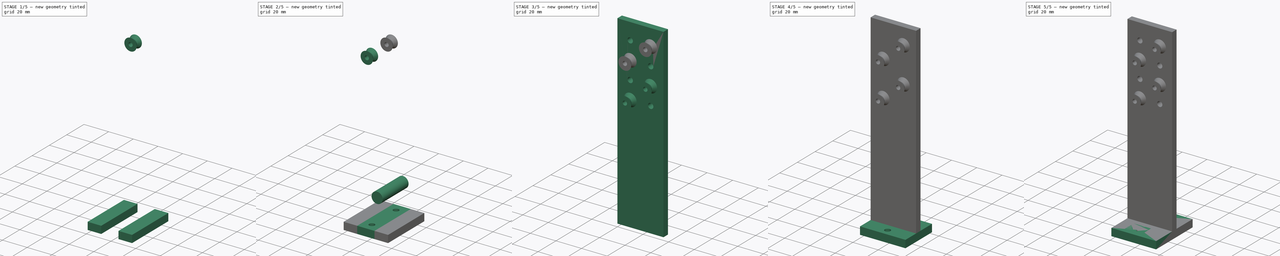
[diagram: build sequence overview — one tinted view per stage of 5, left to right]
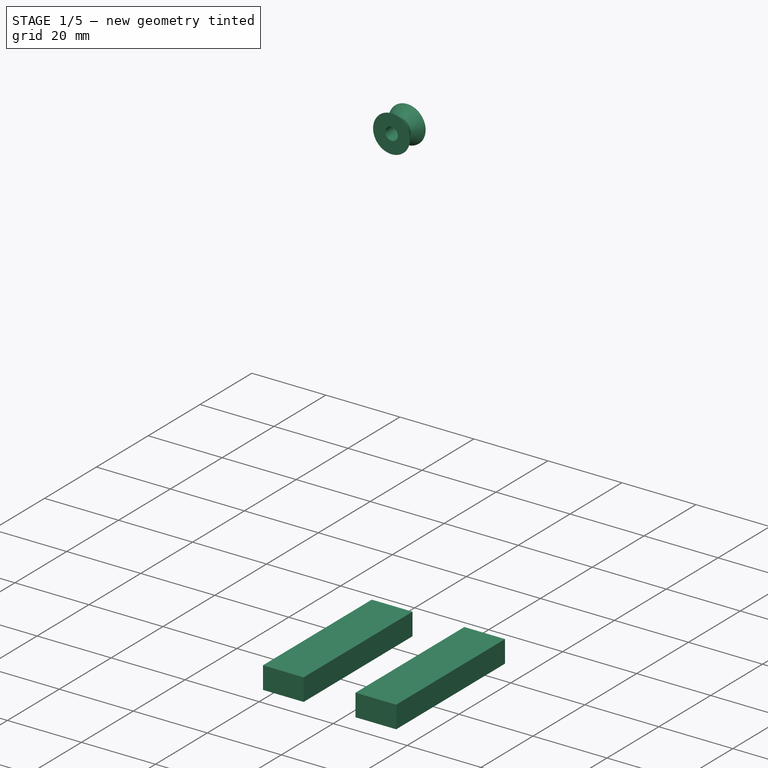
[diagram: stage 1 of 5 — iso view after this stage's code; geometry added in this stage tinted green]
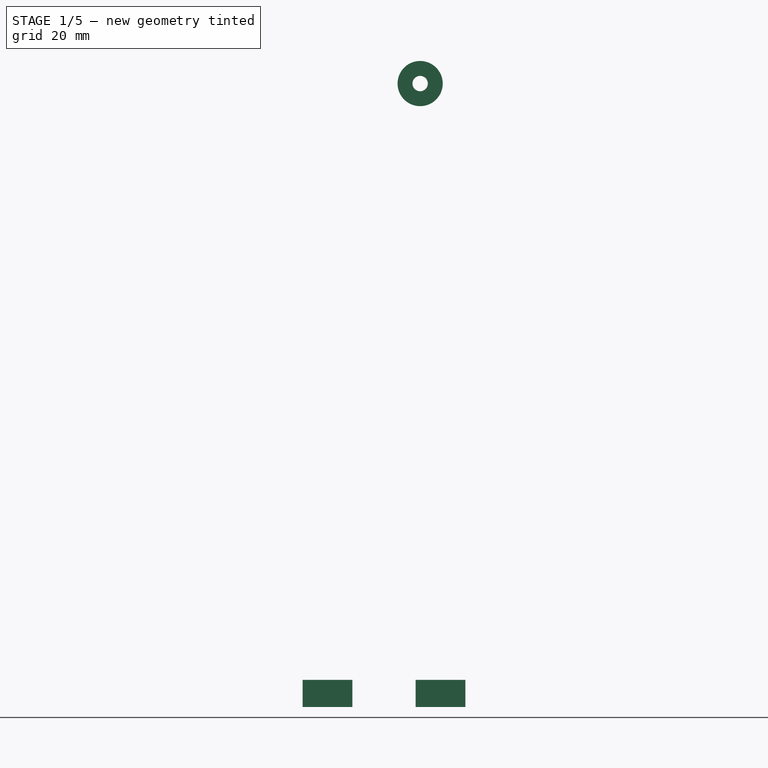
[diagram: stage 1 of 5 — front view after this stage's code; geometry added in this stage tinted green]
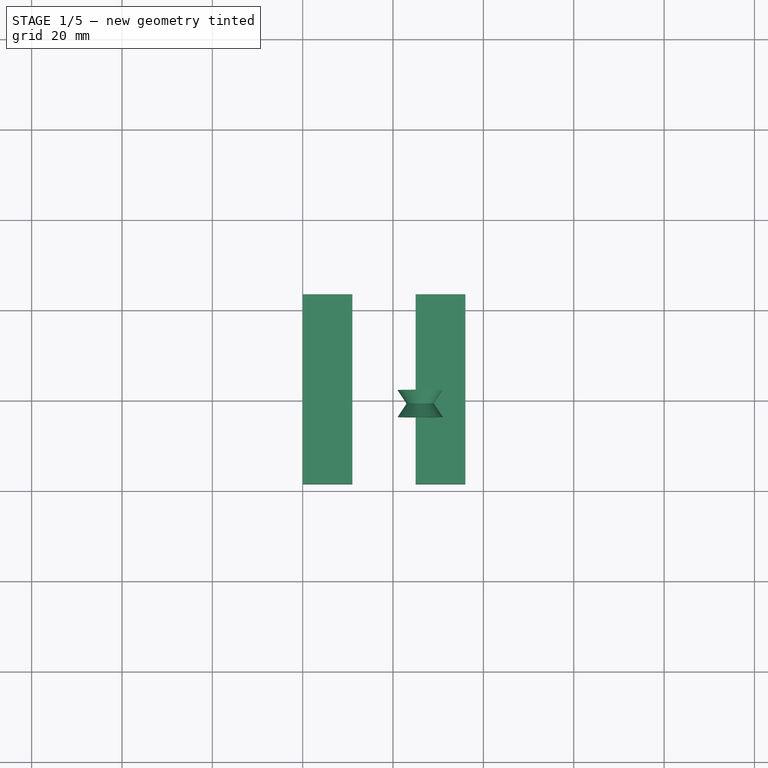
[diagram: stage 1 of 5 — top view after this stage's code; geometry added in this stage tinted green]
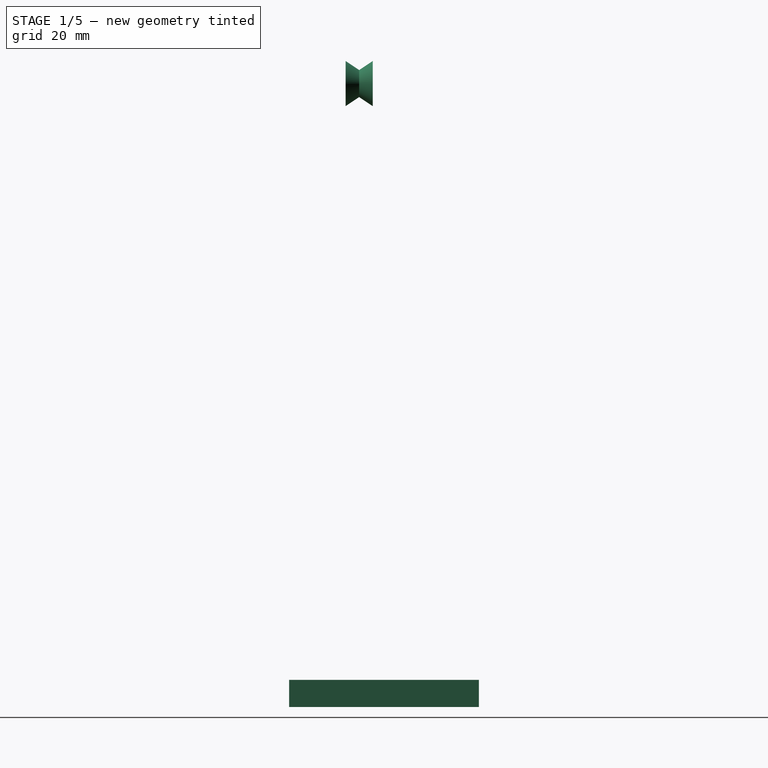
[diagram: stage 1 of 5 — right view after this stage's code; geometry added in this stage tinted green]
FCSTD DOCUMENT  (FreeCAD 0.18R4 (GitTag))
Label: Conjunto módulo tensionador
License: All rights reserved
LicenseURL: http://en.wikipedia.org/wiki/All_rights_reserved
objects: Part::Box×13, Part::Cut×9, Part::Cylinder×6, Part::Feature×6, Part::MultiFuse×4, Sketcher::SketchObject×2, PartDesign::Pocket×2, Part::Fuse×2
note: 46 computed .brp shape members not serialized (recipe doc carries the construction recipe); baked Part::Feature solids carry a one-line shape summary decoded from their .brp

FEATURE [Part::Box] Box010  label="Cubo010"
  AttacherType = Attacher::AttachEngine3D
  Height = 6
  Length = 11
  Placement = pos=(0,-18.5,-6) rot=(0,0,1;0rad)
  Width = 42
FEATURE [Part::Box] Box011  label="Cubo011"
  AttacherType = Attacher::AttachEngine3D
  Height = 6
  Length = 11
  Placement = pos=(25,-18.5,-6) rot=(0,0,1;0rad)
  Width = 42
FEATURE [Part::Box] Box012  label="Cubo012"
  AttacherType = Attacher::AttachEngine3D
  Height = 6
  Length = 11
  Placement = pos=(0,-18.5,-6) rot=(0,0,1;0rad)
  Width = 42
FEATURE [Part::Cylinder] Cylinder007  label="Cilindro007"
  Angle = 360
  AttacherType = Attacher::AttachEngine3D
  Height = 30
  Placement = pos=(21.158,20,20) rot=(1,0,0;1.5708rad)
  Radius = 4.5
FEATURE [Part::Box] Box013  label="Cubo013"
  AttacherType = Attacher::AttachEngine3D
  Height = 6
  Length = 11
  Placement = pos=(25,-18.5,-6) rot=(0,0,1;0rad)
  Width = 42
FEATURE [Part::Feature] Cut003001013
  Placement = pos=(3,0,0) rot=(0,0,1;0rad)
  shape: bbox 14 x 42 x 6 mm, 8 faces (baked)
FEATURE [Part::MultiFuse] Fusion001002021
  Shapes = -> [Box012,Cut003001013,Box013]
FEATURE [Part::Cut] Cut003001012  label="tensioner003"
  Base = -> Fusion001002021
  Placement = pos=(26,-3,132) rot=(1,0,0;1.5708rad)
  Tool = -> Cylinder007
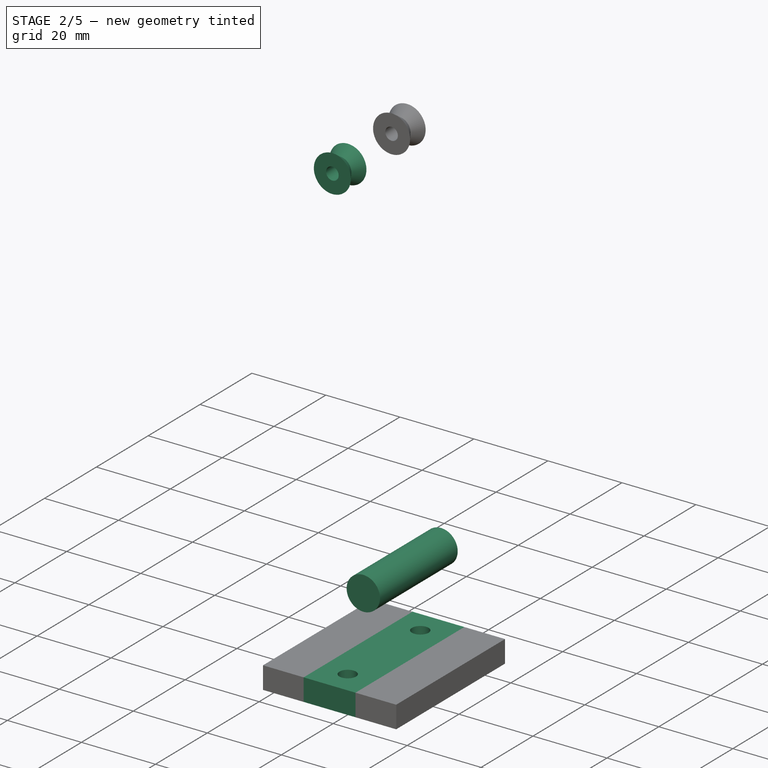
[diagram: stage 2 of 5 — iso view after this stage's code; geometry added in this stage tinted green]
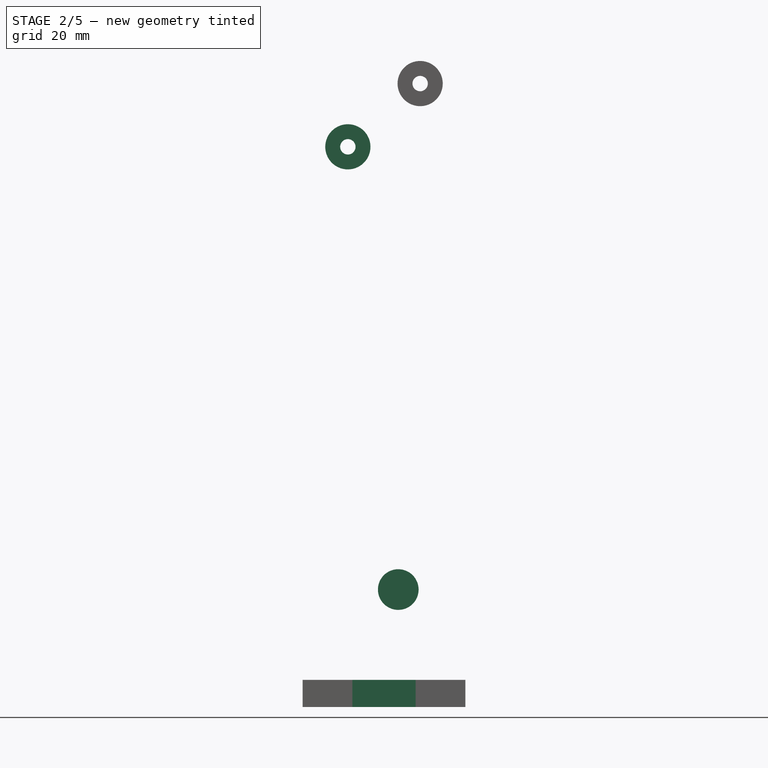
[diagram: stage 2 of 5 — front view after this stage's code; geometry added in this stage tinted green]
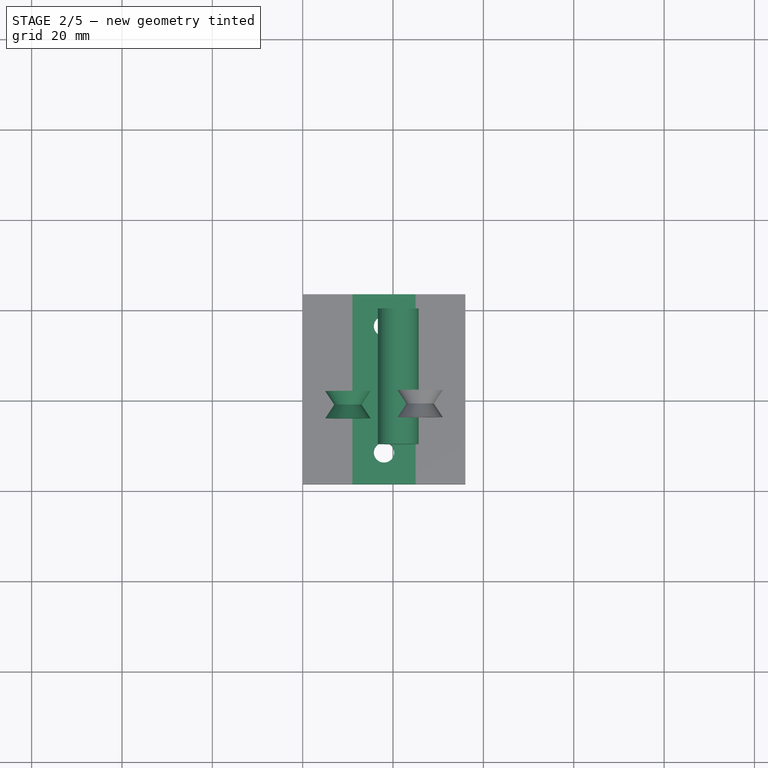
[diagram: stage 2 of 5 — top view after this stage's code; geometry added in this stage tinted green]
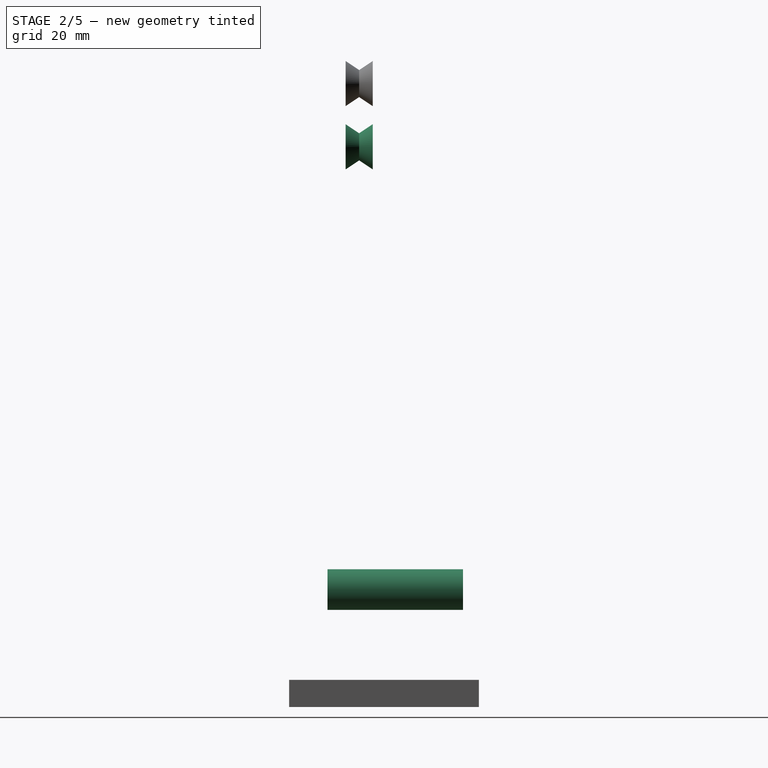
[diagram: stage 2 of 5 — right view after this stage's code; geometry added in this stage tinted green]
FEATURE [Part::Cylinder] Cylinder005  label="Cilindro005"
  Angle = 360
  AttacherType = Attacher::AttachEngine3D
  Height = 30
  Placement = pos=(21.158,20,20) rot=(1,0,0;1.5708rad)
  Radius = 4.5
FEATURE [Part::Box] Box008  label="Cubo008"
  AttacherType = Attacher::AttachEngine3D
  Height = 6
  Length = 11
  Placement = pos=(0,-18.5,-6) rot=(0,0,1;0rad)
  Width = 42
FEATURE [Part::Box] Box009  label="Cubo009"
  AttacherType = Attacher::AttachEngine3D
  Height = 6
  Length = 11
  Placement = pos=(25,-18.5,-6) rot=(0,0,1;0rad)
  Width = 42
FEATURE [Part::Feature] Cut003001008
  Placement = pos=(3,0,0) rot=(0,0,1;0rad)
  shape: bbox 14 x 42 x 6 mm, 8 faces (baked)
FEATURE [Part::MultiFuse] Fusion001002019
  Shapes = -> [Box008,Cut003001008,Box009]
FEATURE [Part::Cylinder] Cylinder006  label="Cilindro006"
  Angle = 360
  AttacherType = Attacher::AttachEngine3D
  Height = 30
  Placement = pos=(21.158,20,20) rot=(1,0,0;1.5708rad)
  Radius = 4.5
FEATURE [Part::Feature] Cut003001011
  Placement = pos=(3,0,0) rot=(0,0,1;0rad)
  shape: bbox 14 x 42 x 6 mm, 8 faces (baked)
FEATURE [Part::MultiFuse] Fusion001002020
  Shapes = -> [Box010,Cut003001011,Box011]
FEATURE [Part::Cut] Cut003001010  label="tensioner002"
  Base = -> Fusion001002020
  Placement = pos=(10,-3,118) rot=(1,0,0;1.5708rad)
  Tool = -> Cylinder006
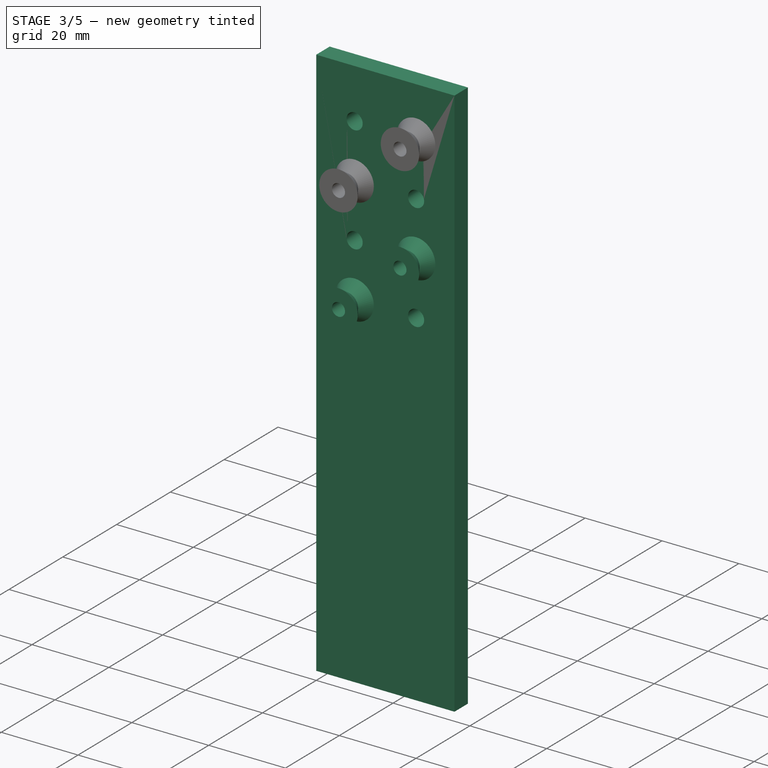
[diagram: stage 3 of 5 — iso view after this stage's code; geometry added in this stage tinted green]
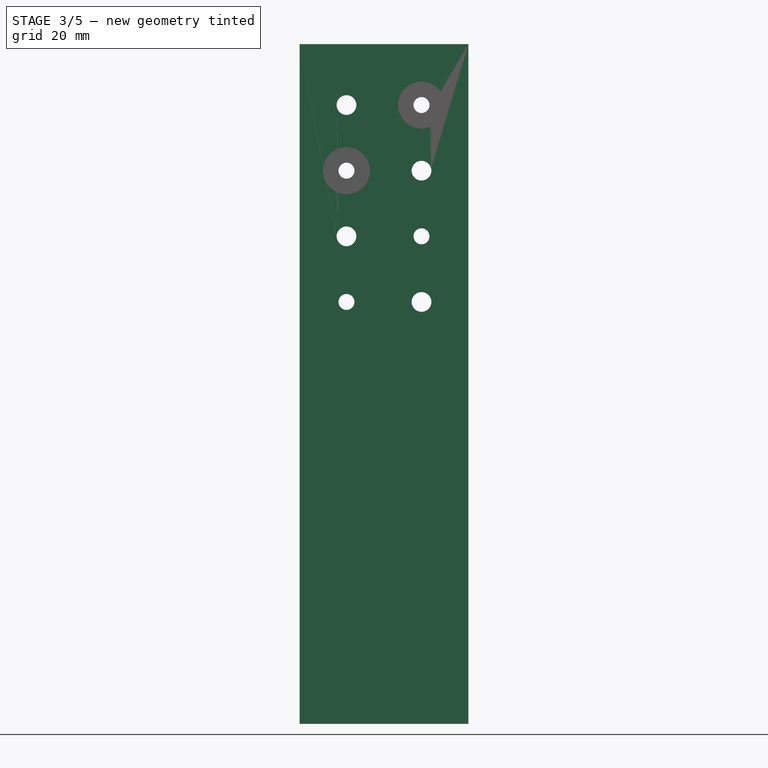
[diagram: stage 3 of 5 — front view after this stage's code; geometry added in this stage tinted green]
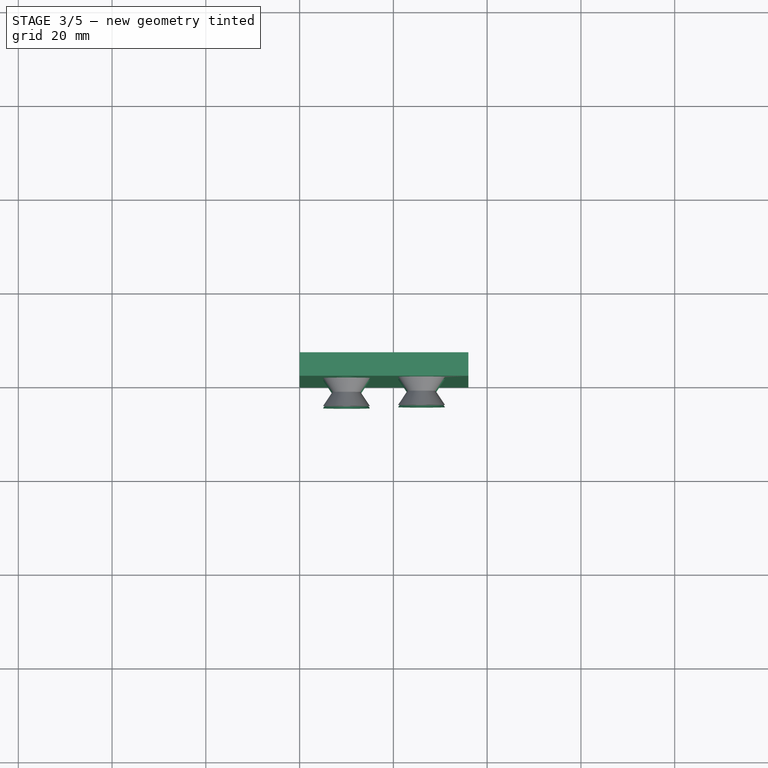
[diagram: stage 3 of 5 — top view after this stage's code; geometry added in this stage tinted green]
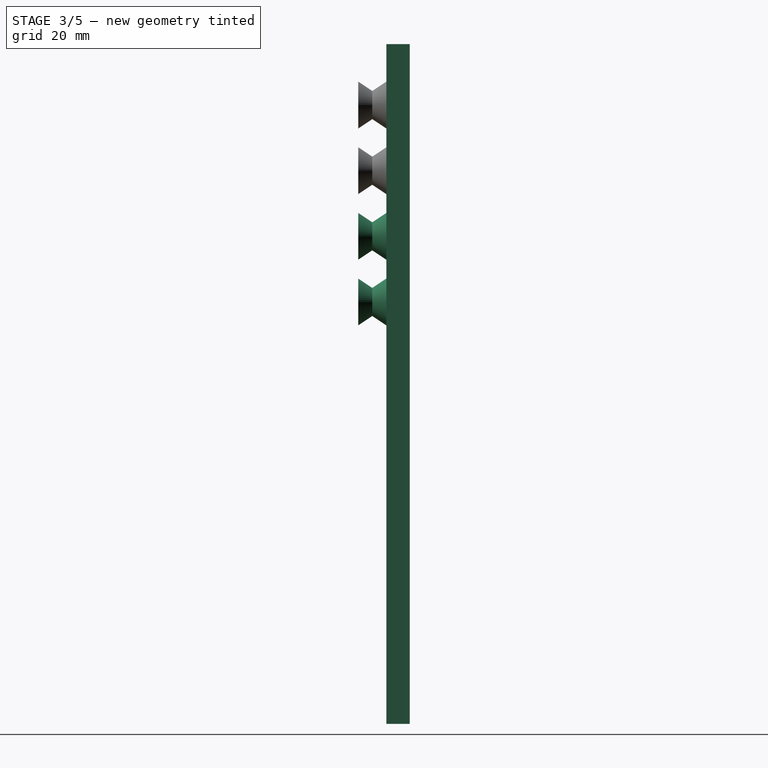
[diagram: stage 3 of 5 — right view after this stage's code; geometry added in this stage tinted green]
FEATURE [Part::Cylinder] Cylinder  label="Cilindro"
  Angle = 360
  AttacherType = Attacher::AttachEngine3D
  Height = 30
  Placement = pos=(21.158,20,20) rot=(1,0,0;1.5708rad)
  Radius = 4.5
FEATURE [Part::Feature] Cut003001004
  Placement = pos=(3,0,0) rot=(0,0,1;0rad)
  shape: bbox 14 x 42 x 6 mm, 8 faces (baked)
FEATURE [Part::Box] Box004  label="Cubo004"
  AttacherType = Attacher::AttachEngine3D
  Height = 6
  Length = 11
  Placement = pos=(25,-18.5,-6) rot=(0,0,1;0rad)
  Width = 42
FEATURE [Part::Box] Box005  label="Cubo005"
  AttacherType = Attacher::AttachEngine3D
  Height = 6
  Length = 11
  Placement = pos=(0,-18.5,-6) rot=(0,0,1;0rad)
  Width = 42
FEATURE [Part::MultiFuse] Fusion
  Shapes = -> [Box005,Cut003001004,Box004]
FEATURE [Part::Box] Box007  label="Cubo007"
  AttacherType = Attacher::AttachEngine3D
  Height = 145
  Length = 36
  Width = 5
FEATURE [Sketcher::SketchObject] Sketch001
  MapMode = 5
  Placement = pos=(0,0,0) rot=(1,0,0;1.5708rad)
  Support = -> [Box007]
  sketch-geometry (9):
    g0: Circle CenterX=10 CenterY=132 CenterZ=0 NormalX=0 NormalY=0 NormalZ=1 AngleXU=0 Radius=2.1
    g1: Circle CenterX=26 CenterY=132 CenterZ=0 NormalX=0 NormalY=0 NormalZ=1 AngleXU=0 Radius=2.1
    g2: Circle CenterX=10 CenterY=118 CenterZ=0 NormalX=0 NormalY=0 NormalZ=1 AngleXU=0 Radius=2.1
    g3: Circle CenterX=26 CenterY=118 CenterZ=0 NormalX=0 NormalY=0 NormalZ=1 AngleXU=0 Radius=2.1
    g4: Circle CenterX=10 CenterY=104 CenterZ=0 NormalX=0 NormalY=0 NormalZ=1 AngleXU=0 Radius=2.1
    g5: Circle CenterX=26 CenterY=104 CenterZ=0 NormalX=0 NormalY=0 NormalZ=1 AngleXU=0 Radius=2.1
    g6: Circle CenterX=10 CenterY=90 CenterZ=0 NormalX=0 NormalY=0 NormalZ=1 AngleXU=0 Radius=2.1
    g7: Circle CenterX=26 CenterY=90 CenterZ=0 NormalX=0 NormalY=0 NormalZ=1 AngleXU=0 Radius=2.1
    g8: GeomPoint [constr] X=36 Y=144.993 Z=0
  constraints (20):
    c: Radius(g1) = 2.1
    c: Equal(g1,g0)
    c: Equal(g1, g2-g7) x6
    c: DistanceX(g0) = 10
    c: DistanceX(g0,g1) = 16
    c: DistanceY(g0,g1) = 0
    c: DistanceX(g2,g0) = 0
    c: DistanceX(g3,g1) = 0
    c: DistanceX(g4,g2) = 0
    c: DistanceX(g5,g3) = 0
    c: DistanceX(g6,g4) = 0
    c: DistanceX(g7,g5) = 0
    c: DistanceY(g7,g6) = 0
    c: DistanceY(g4,g5) = 0
    c: DistanceY(g2,g3) = 0
    c: DistanceX(g1,g8) = 10
    c: DistanceY(g2,g0) = 14
    c: DistanceY(g4,g2) = 14
    c: DistanceY(g6,g4) = 14
    c: DistanceY(g-1,g6) = 90
FEATURE [PartDesign::Pocket] Pocket001
  Length = 5
  Length2 = 100
  Profile = -> Sketch001
  Type = 0
FEATURE [Part::Cut] Cut003001007  label="tensioner"
  Base = -> Fusion
  Placement = pos=(10,-3,90) rot=(1,0,0;1.5708rad)
  Tool = -> Cylinder
FEATURE [Part::Cut] Cut003001009  label="tensioner001"
  Base = -> Fusion001002019
  Placement = pos=(26,-3,104) rot=(1,0,0;1.5708rad)
  Tool = -> Cylinder005
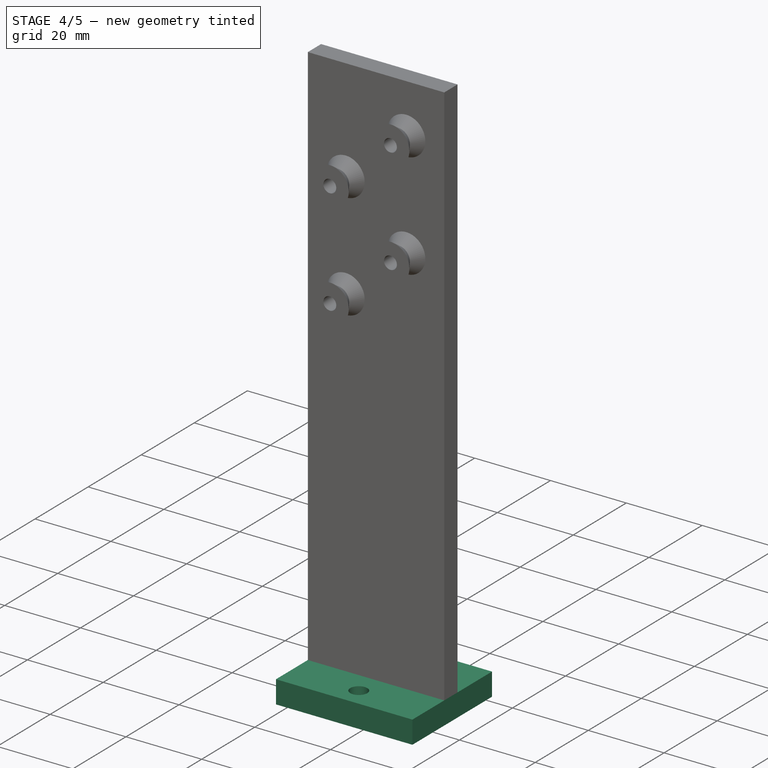
[diagram: stage 4 of 5 — iso view after this stage's code; geometry added in this stage tinted green]
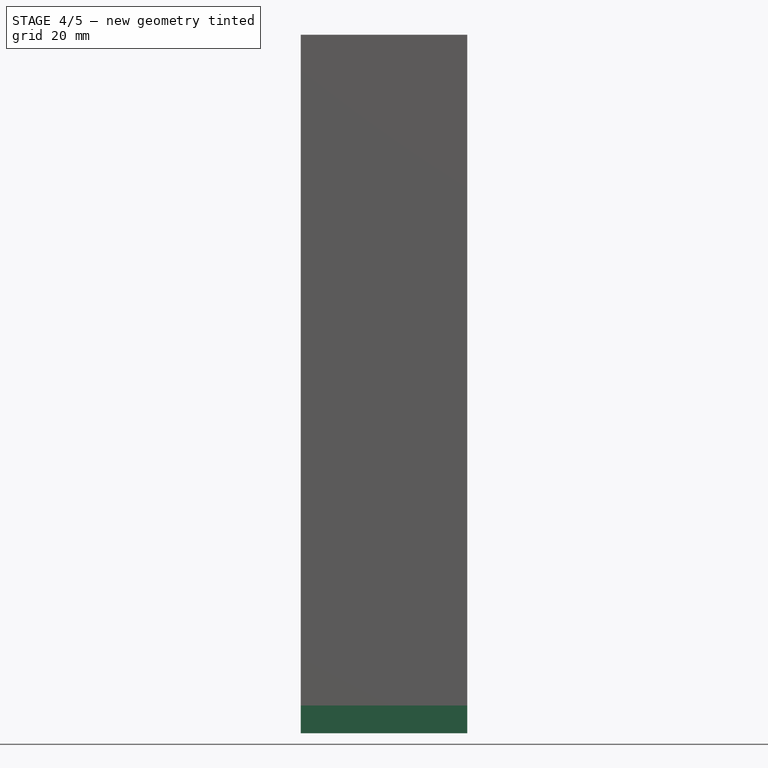
[diagram: stage 4 of 5 — front view after this stage's code; geometry added in this stage tinted green]
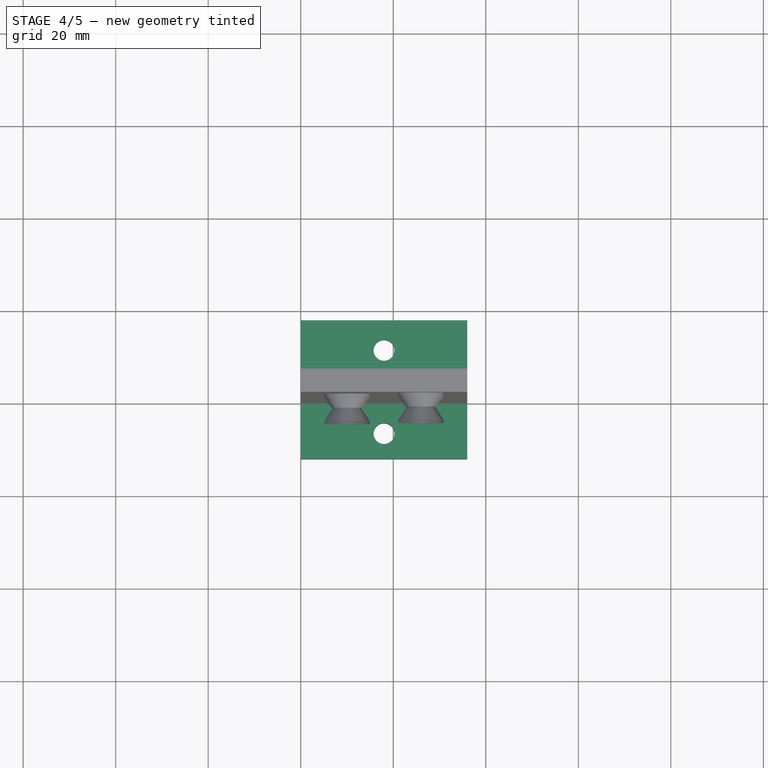
[diagram: stage 4 of 5 — top view after this stage's code; geometry added in this stage tinted green]
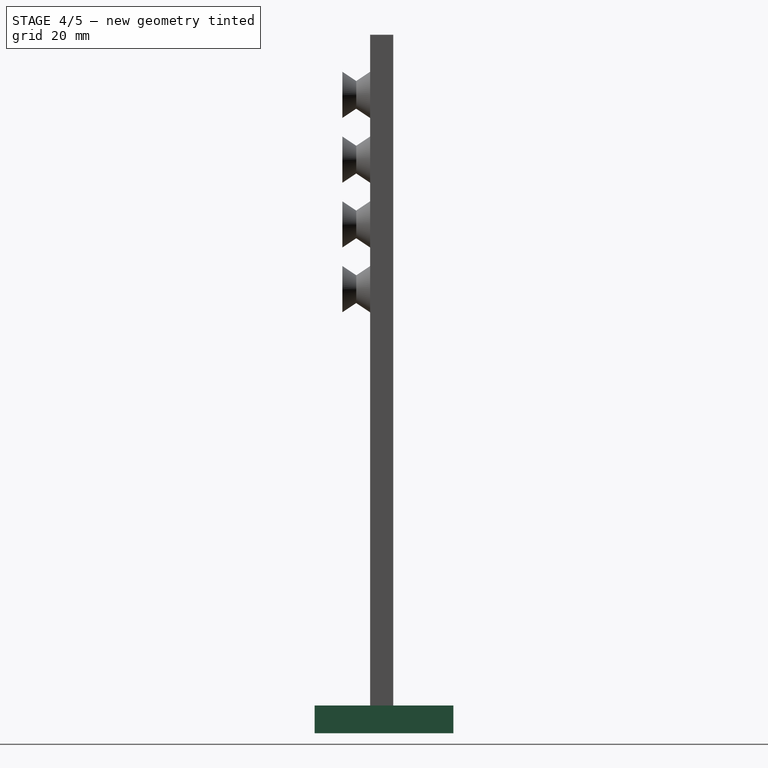
[diagram: stage 4 of 5 — right view after this stage's code; geometry added in this stage tinted green]
FEATURE [Part::Box] Box  label="Cubo"
  AttacherType = Attacher::AttachEngine3D
  Height = 145
  Length = 36
  Width = 5
FEATURE [Part::Cylinder] Cylinder003  label="Cilindro003"
  Angle = 360
  AttacherType = Attacher::AttachEngine3D
  Height = 10
  Placement = pos=(18,11.5,-8) rot=(0,0,1;0rad)
  Radius = 2.25
FEATURE [Part::Box] Box006  label="Cubo006"
  AttacherType = Attacher::AttachEngine3D
  Height = 6
  Length = 36
  Placement = pos=(0,-12,-6) rot=(0,0,1;0rad)
  Width = 30
FEATURE [Part::Cylinder] Cylinder004  label="Cilindro004"
  Angle = 360
  AttacherType = Attacher::AttachEngine3D
  Height = 10
  Placement = pos=(18,-6.5,-8) rot=(0,0,1;0rad)
  Radius = 2.25
FEATURE [Part::Cut] Cut003001005
  Base = -> Box006
  Tool = -> Cylinder004
FEATURE [Part::Cut] Cut003001006
  Base = -> Cut003001005
  Tool = -> Cylinder003
FEATURE [Part::Fuse] Fusion001002018  label="modulo-tensionador2"
  Base = -> Cut003001006
  Tool = -> Pocket001
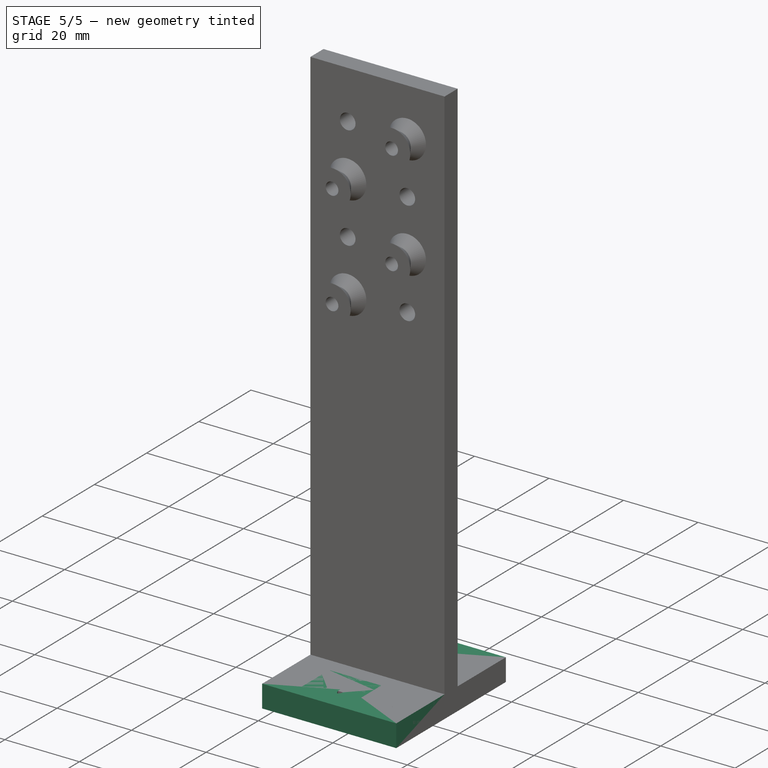
[diagram: stage 5 of 5 — iso view after this stage's code; geometry added in this stage tinted green]
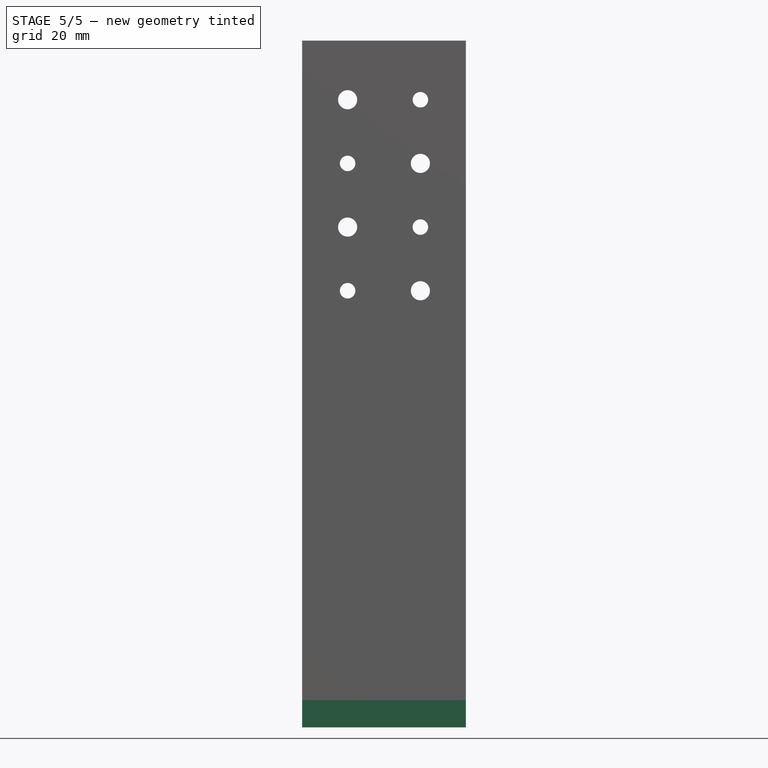
[diagram: stage 5 of 5 — front view after this stage's code; geometry added in this stage tinted green]
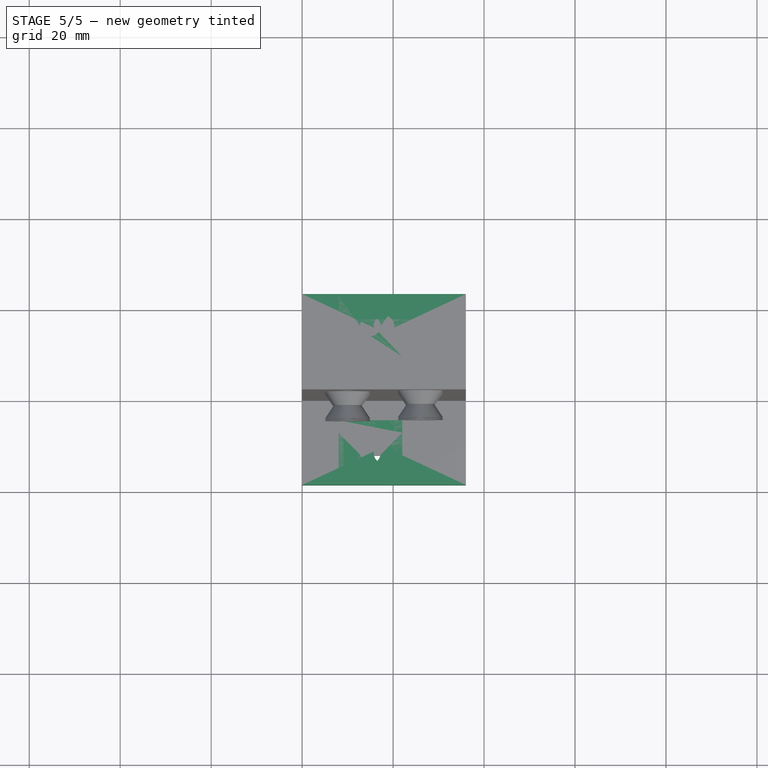
[diagram: stage 5 of 5 — top view after this stage's code; geometry added in this stage tinted green]
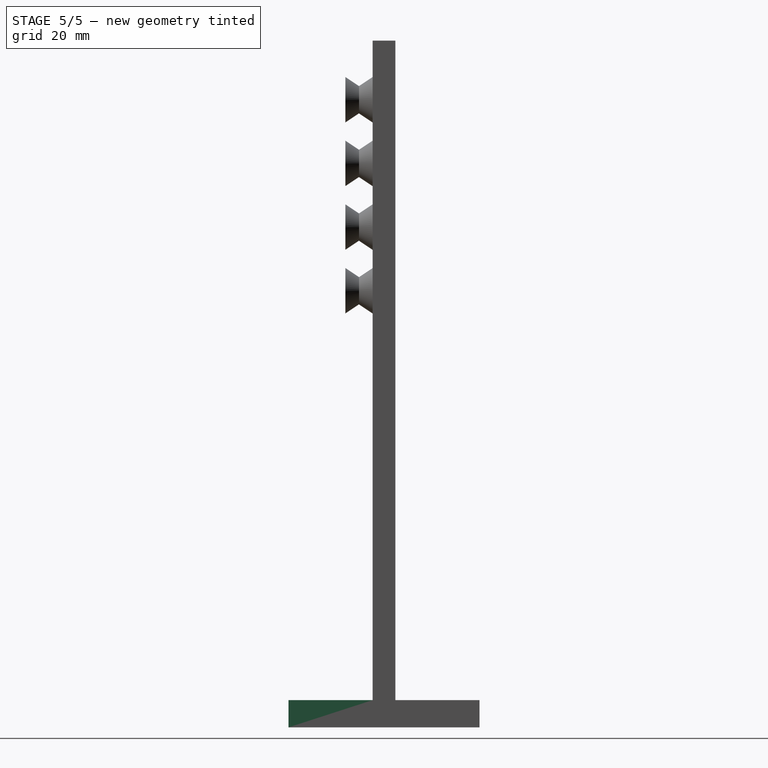
[diagram: stage 5 of 5 — right view after this stage's code; geometry added in this stage tinted green]
FEATURE [Sketcher::SketchObject] Sketch
  MapMode = 5
  Placement = pos=(0,0,0) rot=(1,0,0;1.5708rad)
  Support = -> [Box]
  sketch-geometry (9):
    g0: Circle CenterX=10 CenterY=132 CenterZ=0 NormalX=0 NormalY=0 NormalZ=1 AngleXU=0 Radius=2.1
    g1: Circle CenterX=26 CenterY=132 CenterZ=0 NormalX=0 NormalY=0 NormalZ=1 AngleXU=0 Radius=2.1
    g2: Circle CenterX=10 CenterY=118 CenterZ=0 NormalX=0 NormalY=0 NormalZ=1 AngleXU=0 Radius=2.1
    g3: Circle CenterX=26 CenterY=118 CenterZ=0 NormalX=0 NormalY=0 NormalZ=1 AngleXU=0 Radius=2.1
    g4: Circle CenterX=10 CenterY=104 CenterZ=0 NormalX=0 NormalY=0 NormalZ=1 AngleXU=0 Radius=2.1
    g5: Circle CenterX=26 CenterY=104 CenterZ=0 NormalX=0 NormalY=0 NormalZ=1 AngleXU=0 Radius=2.1
    g6: Circle CenterX=10 CenterY=90 CenterZ=0 NormalX=0 NormalY=0 NormalZ=1 AngleXU=0 Radius=2.1
    g7: Circle CenterX=26 CenterY=90 CenterZ=0 NormalX=0 NormalY=0 NormalZ=1 AngleXU=0 Radius=2.1
    g8: GeomPoint [constr] X=36 Y=144.993 Z=0
  constraints (20):
    c: Radius(g1) = 2.1
    c: Equal(g1,g0)
    c: Equal(g1, g2-g7) x6
    c: DistanceX(g0) = 10
    c: DistanceX(g0,g1) = 16
    c: DistanceY(g0,g1) = 0
    c: DistanceX(g2,g0) = 0
    c: DistanceX(g3,g1) = 0
    c: DistanceX(g4,g2) = 0
    c: DistanceX(g5,g3) = 0
    c: DistanceX(g6,g4) = 0
    c: DistanceX(g7,g5) = 0
    c: DistanceY(g7,g6) = 0
    c: DistanceY(g4,g5) = 0
    c: DistanceY(g2,g3) = 0
    c: DistanceX(g1,g8) = 10
    c: DistanceY(g2,g0) = 14
    c: DistanceY(g4,g2) = 14
    c: DistanceY(g6,g4) = 14
    c: DistanceY(g-1,g6) = 90
FEATURE [PartDesign::Pocket] Pocket
  Length = 5
  Length2 = 100
  Profile = -> Sketch
  Type = 0
FEATURE [Part::Feature] Cut003001001  label="Cut005"
  shape: bbox 42 x 14 x 33 mm, 13 faces (baked)
FEATURE [Part::Cut] Cut003001002
  Base = -> Cut003001001
  Tool = -> Cylinder
FEATURE [Part::Box] Box002  label="Cubo002"
  AttacherType = Attacher::AttachEngine3D
  Height = 30
  Length = 3
  Placement = pos=(19.73,0,20) rot=(0,0,1;0rad)
  Width = 30
FEATURE [Part::Cut] Cut003001003
  Base = -> Cut003001002
  Placement = pos=(22,-18.5,-6) rot=(0,0,1;1.5708rad)
  Tool = -> Box002
FEATURE [Part::Box] Box003  label="Cubo003"
  AttacherType = Attacher::AttachEngine3D
  Height = 100
  Length = 40
  Placement = pos=(0,-7,0) rot=(0,0,1;0rad)
  Width = 30
FEATURE [Part::Cut] Cut
  Base = -> Cut003001003
  Tool = -> Box003
FEATURE [Part::Feature] Fusion001002016  label="Fusion001018"
  shape: bbox 36 x 42 x 6 mm, 8 faces (baked)
FEATURE [Part::Fuse] Fusion001002017  label="modulo-tensionador1"
  Base = -> Pocket
  Tool = -> Fusion001002016
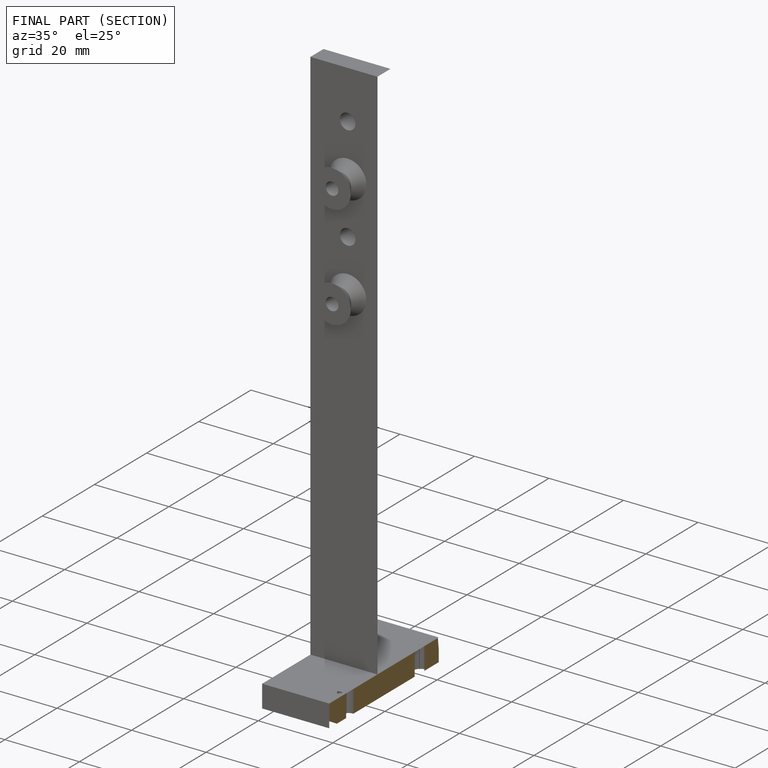
[diagram: finished part — half-section view (interior)]
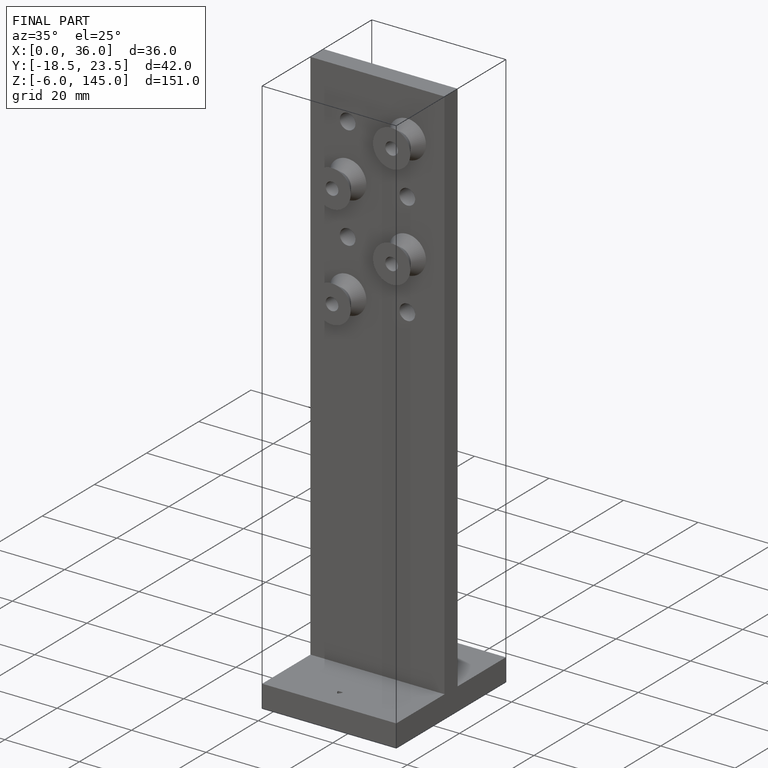
[diagram: finished part — iso view with bounding-box wireframe]
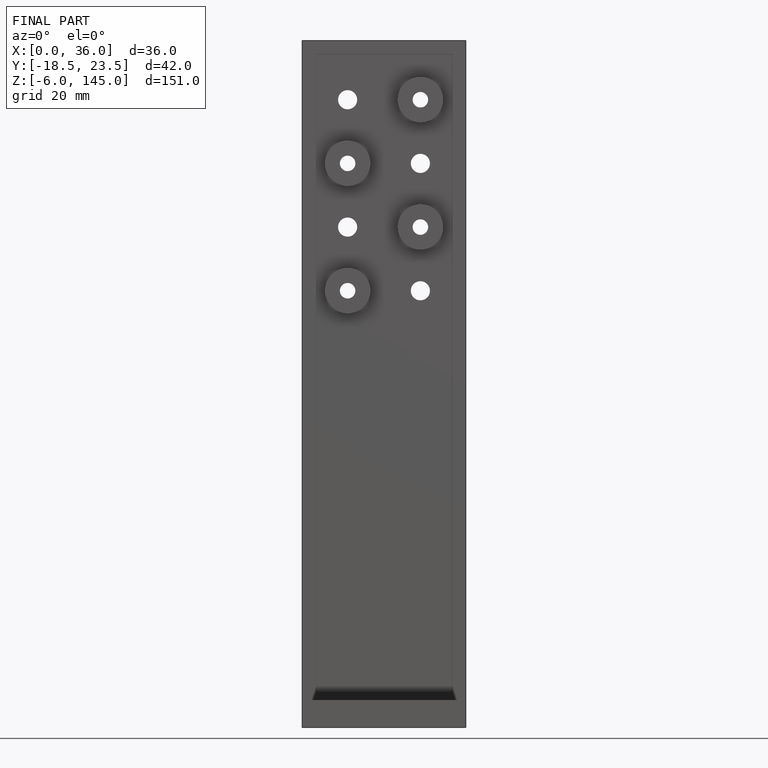
[diagram: finished part — front view with bounding-box wireframe]
